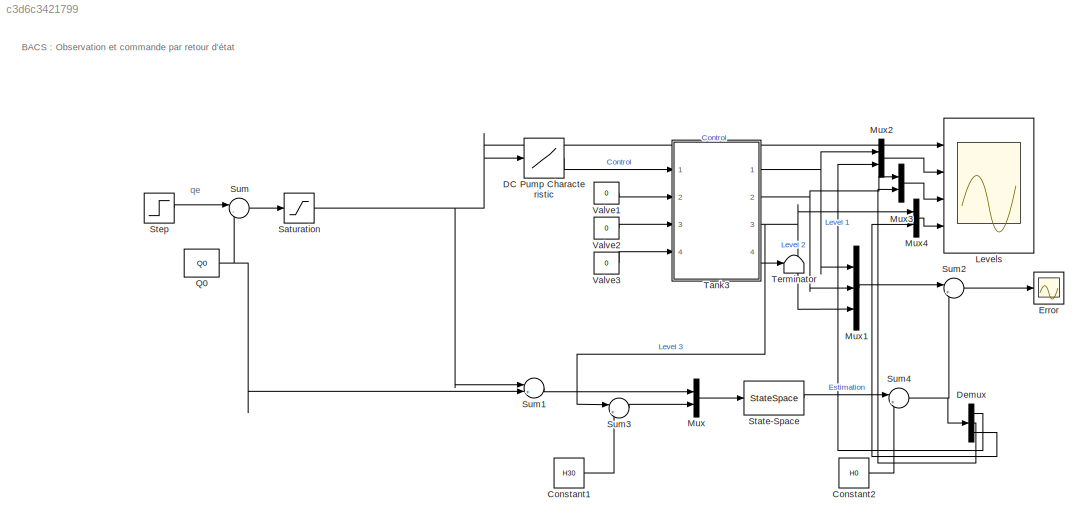
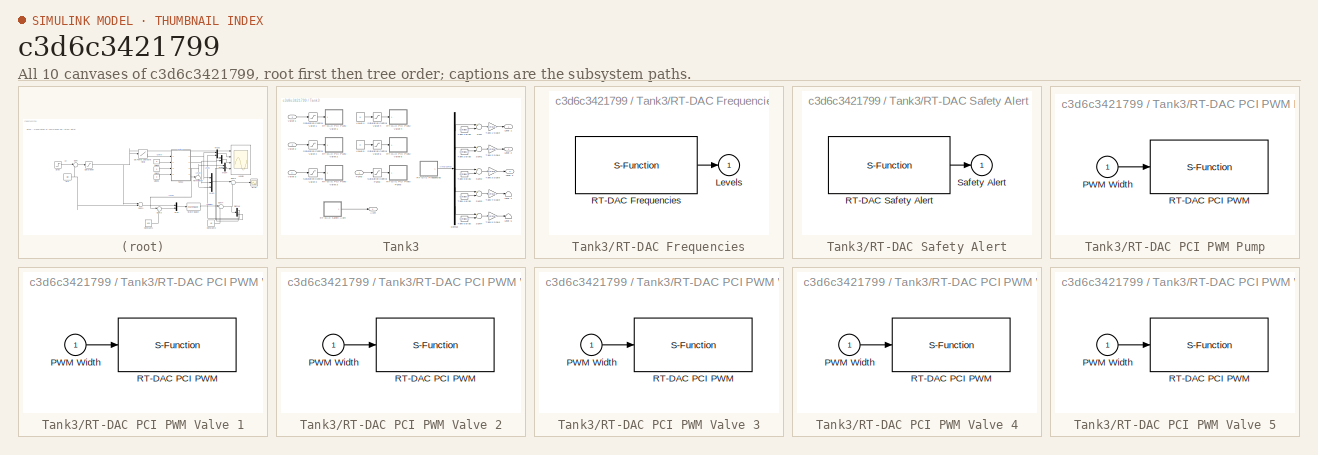
[diagram: thumbnail index - all 10 canvases of the model, root first then tree order]
MODEL slx_c3d6c3421799
KIND model
CONFIG AbsTol = 1e-6
CONFIG EnableMultiTasking = off
CONFIG FixedStep = 0.01
CONFIG MaxStep = auto
CONFIG MinStep = auto
CONFIG RelTol = 1e-3
CONFIG SampleTimeConstraint = Unconstrained
CONFIG Solver = ode5
CONFIG SolverName = ode5
CONFIG StartTime = 0.0
CONFIG StopTime = 9999
BLOCK [Constant] Constant1
  Value = H30
BLOCK [Constant] Constant2
  Value = H0
BLOCK [Lookup] DC Pump Characteristic
  InputValues = GetPumpChar('Volume')
  Table = GetPumpChar('control')
BLOCK [Demux] Demux
  DisplayOption = bar
  Outputs = 3
  Ports = [1, 3]
BLOCK [Scope] Error
  Floating = off
  NumInputPorts = 1
  Ports = [1]
  ScopeSpecificationString = Simulink.scopes.TimeScopeBlockCfg('CurrentConfiguration', extmgr.ConfigurationSet(extmgr.Configuration('Core','General UI',true),extmgr.Configuration('Core','Source UI',true),extmgr.Configuration('Sources','WiredSimulink',true,'DataLoggingVariableName','Error_real','DataLogging',true,'DataLoggingSaveFormat','StructureWithTime'),extmgr.Configuration('Visuals','Time Domain',true,'SerializedDisplays'...<+1446ch>
BLOCK [Scope] Levels
  ExtModeLoggingTrig = on
  Floating = off
  NumInputPorts = 4
  Ports = [4]
  ScopeSpecificationString = Simulink.scopes.TimeScopeBlockCfg('CurrentConfiguration', extmgr.ConfigurationSet(extmgr.Configuration('Core','General UI',true,'FigureColor',[1 1 1]),extmgr.Configuration('Core','Source UI',true),extmgr.Configuration('Sources','WiredSimulink',true,'DataLogging',true,'DataLoggingVariableName','Levels_real','DataLoggingSaveFormat','StructureWithTime','DataLoggingMaxPoints','100000','DataLoggingDeci...<+4288ch>
BLOCK [Mux] Mux
  DisplayOption = bar
  Inputs = 2
  Ports = [2, 1]
BLOCK [Mux] Mux1
  DisplayOption = bar
  Inputs = 3
  Ports = [3, 1]
BLOCK [Mux] Mux2
  DisplayOption = bar
  Inputs = 2
  Ports = [2, 1]
BLOCK [Mux] Mux3
  DisplayOption = bar
  Inputs = 2
  Ports = [2, 1]
BLOCK [Mux] Mux4
  DisplayOption = bar
  Inputs = 2
  Ports = [2, 1]
BLOCK [Constant] Q0
  Value = Q0
BLOCK [Saturate] Saturation
  InputPortMap = u0
  LowerLimit = 0
  Ports = [1, 1]
  UpperLimit = GetPumpChar('MaxVolume')
BLOCK [StateSpace] State-Space
  A = A-L1*C
  B = [B L1]
  C = eye(3)
  D = zeros(3,2)
  InitialCondition = 0
  Ports = [1, 1]
BLOCK [Step] Step
  After = 0.1*Q0
  SampleTime = 0
  Time = 300
BLOCK [Sum] Sum
  IconShape = round
  InputSameDT = off
  Inputs = |-+
  OutDataTypeStr = Inherit: Inherit via internal rule
  Ports = [2, 1]
  SaturateOnIntegerOverflow = off
BLOCK [Sum] Sum1
  IconShape = round
  InputSameDT = off
  Inputs = |+-
  OutDataTypeStr = Inherit: Inherit via internal rule
  Ports = [2, 1]
  SaturateOnIntegerOverflow = off
BLOCK [Sum] Sum2
  IconShape = round
  InputSameDT = off
  Inputs = |+-
  OutDataTypeStr = Inherit: Inherit via internal rule
  Ports = [2, 1]
  SaturateOnIntegerOverflow = off
BLOCK [Sum] Sum3
  IconShape = round
  InputSameDT = off
  Inputs = |+-
  OutDataTypeStr = Inherit: Inherit via internal rule
  Ports = [2, 1]
  SaturateOnIntegerOverflow = off
BLOCK [Sum] Sum4
  IconShape = round
  InputSameDT = off
  Inputs = |++
  OutDataTypeStr = Inherit: Inherit via internal rule
  Ports = [2, 1]
  SaturateOnIntegerOverflow = off
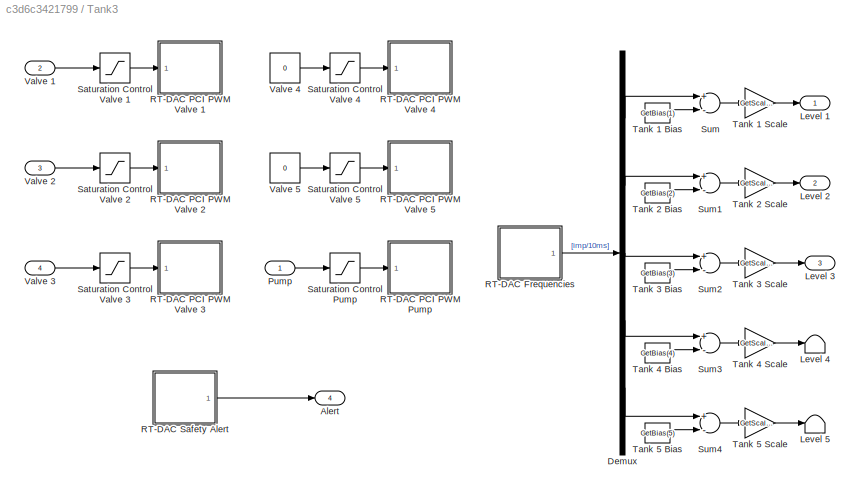
BLOCK [SubSystem] Tank3
  Ports = [4, 4]
  RequestExecContextInheritance = off
BLOCK [Outport] Tank3/Alert
  IconDisplay = Port number
  Port = 4
BLOCK [Demux] Tank3/Demux
  DisplayOption = bar
  Outputs = 5
  Ports = [1, 5]
BLOCK [Outport] Tank3/Level 1
  IconDisplay = Port number
BLOCK [Outport] Tank3/Level 2
  IconDisplay = Port number
  Port = 2
BLOCK [Outport] Tank3/Level 3
  IconDisplay = Port number
  Port = 3
BLOCK [Terminator] Tank3/Level 4
BLOCK [Terminator] Tank3/Level 5
BLOCK [Inport] Tank3/Pump
  IconDisplay = Port number
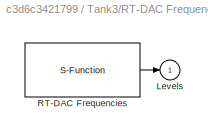
BLOCK [SubSystem] Tank3/RT-DAC Frequencies
  Ports = [0, 1]
  RequestExecContextInheritance = off
BLOCK [Outport] Tank3/RT-DAC Frequencies/Levels
  IconDisplay = Port number
BLOCK [S-Function] Tank3/RT-DAC Frequencies/RT-DAC Frequencies
  EnableBusSupport = off
  FunctionName = tank_frequencies
  Parameters = BaseAddress, T0
  Ports = [0, 1]
  SFcnIsStateOwnerBlock = off
  SFunctionDeploymentMode = off
BLOCK [SubSystem] Tank3/RT-DAC PCI PWM Pump
  Ports = [1]
  RequestExecContextInheritance = off
BLOCK [Inport] Tank3/RT-DAC PCI PWM Pump/PWM Width
  IconDisplay = Port number
BLOCK [S-Function] Tank3/RT-DAC PCI PWM Pump/RT-DAC PCI PWM 
  EnableBusSupport = off
  FunctionName = tank_pwm
  Parameters = BaseAddress, ChanIdx, ChanMode, ChanPresc, SetOutputsFlag, SetOutputsValue, T0
  Ports = [1]
  SFcnIsStateOwnerBlock = off
  SFunctionDeploymentMode = off
BLOCK [SubSystem] Tank3/RT-DAC PCI PWM Valve 1
  Ports = [1]
  RequestExecContextInheritance = off
BLOCK [Inport] Tank3/RT-DAC PCI PWM Valve 1/PWM Width
  IconDisplay = Port number
BLOCK [S-Function] Tank3/RT-DAC PCI PWM Valve 1/RT-DAC PCI PWM 
  EnableBusSupport = off
  FunctionName = tank_pwm
  Parameters = BaseAddress, ChanIdx, ChanMode, ChanPresc, SetOutputsFlag, SetOutputsValue, T0
  Ports = [1]
  SFcnIsStateOwnerBlock = off
  SFunctionDeploymentMode = off
BLOCK [SubSystem] Tank3/RT-DAC PCI PWM Valve 2
  Ports = [1]
  RequestExecContextInheritance = off
BLOCK [Inport] Tank3/RT-DAC PCI PWM Valve 2/PWM Width
  IconDisplay = Port number
BLOCK [S-Function] Tank3/RT-DAC PCI PWM Valve 2/RT-DAC PCI PWM 
  EnableBusSupport = off
  FunctionName = tank_pwm
  Parameters = BaseAddress, ChanIdx, ChanMode, ChanPresc, SetOutputsFlag, SetOutputsValue, T0
  Ports = [1]
  SFcnIsStateOwnerBlock = off
  SFunctionDeploymentMode = off
BLOCK [SubSystem] Tank3/RT-DAC PCI PWM Valve 3
  Ports = [1]
  RequestExecContextInheritance = off
BLOCK [Inport] Tank3/RT-DAC PCI PWM Valve 3/PWM Width
  IconDisplay = Port number
BLOCK [S-Function] Tank3/RT-DAC PCI PWM Valve 3/RT-DAC PCI PWM 
  EnableBusSupport = off
  FunctionName = tank_pwm
  Parameters = BaseAddress, ChanIdx, ChanMode, ChanPresc, SetOutputsFlag, SetOutputsValue, T0
  Ports = [1]
  SFcnIsStateOwnerBlock = off
  SFunctionDeploymentMode = off
BLOCK [SubSystem] Tank3/RT-DAC PCI PWM Valve 4
  Ports = [1]
  RequestExecContextInheritance = off
BLOCK [Inport] Tank3/RT-DAC PCI PWM Valve 4/PWM Width
  IconDisplay = Port number
BLOCK [S-Function] Tank3/RT-DAC PCI PWM Valve 4/RT-DAC PCI PWM 
  EnableBusSupport = off
  FunctionName = tank_pwm
  Parameters = BaseAddress, ChanIdx, ChanMode, ChanPresc, SetOutputsFlag, SetOutputsValue, T0
  Ports = [1]
  SFcnIsStateOwnerBlock = off
  SFunctionDeploymentMode = off
BLOCK [SubSystem] Tank3/RT-DAC PCI PWM Valve 5
  Ports = [1]
  RequestExecContextInheritance = off
BLOCK [Inport] Tank3/RT-DAC PCI PWM Valve 5/PWM Width
  IconDisplay = Port number
BLOCK [S-Function] Tank3/RT-DAC PCI PWM Valve 5/RT-DAC PCI PWM 
  EnableBusSupport = off
  FunctionName = tank_pwm
  Parameters = BaseAddress, ChanIdx, ChanMode, ChanPresc, SetOutputsFlag, SetOutputsValue, T0
  Ports = [1]
  SFcnIsStateOwnerBlock = off
  SFunctionDeploymentMode = off
BLOCK [SubSystem] Tank3/RT-DAC Safety Alert
  Ports = [0, 1]
  RequestExecContextInheritance = off
BLOCK [S-Function] Tank3/RT-DAC Safety Alert/RT-DAC Safety Alert
  EnableBusSupport = off
  FunctionName = tank_safetyalert
  Parameters = BaseAddress, T0
  Ports = [0, 1]
  SFcnIsStateOwnerBlock = off
  SFunctionDeploymentMode = off
BLOCK [Outport] Tank3/RT-DAC Safety Alert/Safety Alert
  IconDisplay = Port number
BLOCK [Saturate] Tank3/Saturation Control Pump
  InputPortMap = u0
  LowerLimit = 0
  Ports = [1, 1]
  UpperLimit = 1
BLOCK [Saturate] Tank3/Saturation Control Valve 1
  InputPortMap = u0
  LowerLimit = 0
  Ports = [1, 1]
  UpperLimit = 1
BLOCK [Saturate] Tank3/Saturation Control Valve 2
  InputPortMap = u0
  LowerLimit = 0
  Ports = [1, 1]
  UpperLimit = 1
BLOCK [Saturate] Tank3/Saturation Control Valve 3
  InputPortMap = u0
  LowerLimit = 0
  Ports = [1, 1]
  UpperLimit = 1
BLOCK [Saturate] Tank3/Saturation Control Valve 4
  InputPortMap = u0
  LowerLimit = 0
  Ports = [1, 1]
  UpperLimit = 1
BLOCK [Saturate] Tank3/Saturation Control Valve 5
  InputPortMap = u0
  LowerLimit = 0
  Ports = [1, 1]
  UpperLimit = 1
BLOCK [Sum] Tank3/Sum
  Inputs = +-
  Ports = [2, 1]
BLOCK [Sum] Tank3/Sum1
  Inputs = +-
  Ports = [2, 1]
BLOCK [Sum] Tank3/Sum2
  Inputs = +-
  Ports = [2, 1]
BLOCK [Sum] Tank3/Sum3
  Inputs = +-
  Ports = [2, 1]
BLOCK [Sum] Tank3/Sum4
  Inputs = +-
  Ports = [2, 1]
BLOCK [Constant] Tank3/Tank 1 Bias
  Value = GetBias(1)
BLOCK [Gain] Tank3/Tank 1 Scale
  Gain = GetScaleCoeff(1)
BLOCK [Constant] Tank3/Tank 2 Bias
  Value = GetBias(2)
BLOCK [Gain] Tank3/Tank 2 Scale
  Gain = GetScaleCoeff(2)
BLOCK [Constant] Tank3/Tank 3 Bias
  Value = GetBias(3)
BLOCK [Gain] Tank3/Tank 3 Scale
  Gain = GetScaleCoeff(3)
BLOCK [Constant] Tank3/Tank 4 Bias
  Value = GetBias(4)
BLOCK [Gain] Tank3/Tank 4 Scale
  Gain = GetScaleCoeff(4)
BLOCK [Constant] Tank3/Tank 5 Bias
  Value = GetBias(5)
BLOCK [Gain] Tank3/Tank 5 Scale
  Gain = GetScaleCoeff(5)
BLOCK [Inport] Tank3/Valve 1
  IconDisplay = Port number
  Port = 2
BLOCK [Inport] Tank3/Valve 2
  IconDisplay = Port number
  Port = 3
BLOCK [Inport] Tank3/Valve 3
  IconDisplay = Port number
  Port = 4
BLOCK [Constant] Tank3/Valve 4
  Value = 0
BLOCK [Constant] Tank3/Valve 5
  Value = 0
BLOCK [Terminator] Terminator
BLOCK [Constant] Valve1
  Value = 0
BLOCK [Constant] Valve2
  Value = 0
BLOCK [Constant] Valve3
  Value = 0
ANNOTATION (root): BACS : Observation et commande par retour d'état
ANNOTATION (root): qe
LINE Constant1:1 -> Sum3:2
LINE Constant2:1 -> Sum4:2
LINE DC Pump Characteristic:1 -> Tank3:1
LINE Demux:1 -> Mux2:2
LINE Demux:2 -> Mux3:2
LINE Demux:3 -> Mux4:2
LINE Mux1:1 -> Sum2:1
LINE Mux2:1 -> Levels:2
LINE Mux3:1 -> Levels:3
LINE Mux4:1 -> Levels:4
LINE Mux:1 -> State-Space:1
NET Q0:1 -> Sum1:2, Sum:2
NET Saturation:1 -> DC Pump Characteristic:1, Levels:1, Sum1:1
LINE State-Space:1 -> Sum4:1
LINE Step:1 -> Sum:1
LINE Sum1:1 -> Mux:1
LINE Sum2:1 -> Error:1
LINE Sum3:1 -> Mux:2
NET Sum4:1 -> Demux:1, Sum2:2
LINE Sum:1 -> Saturation:1
LINE Tank3/Demux:1 -> Tank3/Sum:1
LINE Tank3/Demux:2 -> Tank3/Sum1:1
LINE Tank3/Demux:3 -> Tank3/Sum2:1
LINE Tank3/Demux:4 -> Tank3/Sum3:1
LINE Tank3/Demux:5 -> Tank3/Sum4:1
LINE Tank3/Pump:1 -> Tank3/Saturation Control Pump:1
LINE Tank3/RT-DAC Frequencies/RT-DAC Frequencies:1 -> Tank3/RT-DAC Frequencies/Levels:1
LINE Tank3/RT-DAC Frequencies:1 -> Tank3/Demux:1
LINE Tank3/RT-DAC PCI PWM Pump/PWM Width:1 -> Tank3/RT-DAC PCI PWM Pump/RT-DAC PCI PWM :1
LINE Tank3/RT-DAC PCI PWM Valve 1/PWM Width:1 -> Tank3/RT-DAC PCI PWM Valve 1/RT-DAC PCI PWM :1
LINE Tank3/RT-DAC PCI PWM Valve 2/PWM Width:1 -> Tank3/RT-DAC PCI PWM Valve 2/RT-DAC PCI PWM :1
LINE Tank3/RT-DAC PCI PWM Valve 3/PWM Width:1 -> Tank3/RT-DAC PCI PWM Valve 3/RT-DAC PCI PWM :1
LINE Tank3/RT-DAC PCI PWM Valve 4/PWM Width:1 -> Tank3/RT-DAC PCI PWM Valve 4/RT-DAC PCI PWM :1
LINE Tank3/RT-DAC PCI PWM Valve 5/PWM Width:1 -> Tank3/RT-DAC PCI PWM Valve 5/RT-DAC PCI PWM :1
LINE Tank3/RT-DAC Safety Alert/RT-DAC Safety Alert:1 -> Tank3/RT-DAC Safety Alert/Safety Alert:1
LINE Tank3/RT-DAC Safety Alert:1 -> Tank3/Alert:1
LINE Tank3/Saturation Control Pump:1 -> Tank3/RT-DAC PCI PWM Pump:1
LINE Tank3/Saturation Control Valve 1:1 -> Tank3/RT-DAC PCI PWM Valve 1:1
LINE Tank3/Saturation Control Valve 2:1 -> Tank3/RT-DAC PCI PWM Valve 2:1
LINE Tank3/Saturation Control Valve 3:1 -> Tank3/RT-DAC PCI PWM Valve 3:1
LINE Tank3/Saturation Control Valve 4:1 -> Tank3/RT-DAC PCI PWM Valve 4:1
LINE Tank3/Saturation Control Valve 5:1 -> Tank3/RT-DAC PCI PWM Valve 5:1
LINE Tank3/Sum1:1 -> Tank3/Tank 2 Scale:1
LINE Tank3/Sum2:1 -> Tank3/Tank 3 Scale:1
LINE Tank3/Sum3:1 -> Tank3/Tank 4 Scale:1
LINE Tank3/Sum4:1 -> Tank3/Tank 5 Scale:1
LINE Tank3/Sum:1 -> Tank3/Tank 1 Scale:1
LINE Tank3/Tank 1 Bias:1 -> Tank3/Sum:2
LINE Tank3/Tank 1 Scale:1 -> Tank3/Level 1:1
LINE Tank3/Tank 2 Bias:1 -> Tank3/Sum1:2
LINE Tank3/Tank 2 Scale:1 -> Tank3/Level 2:1
LINE Tank3/Tank 3 Bias:1 -> Tank3/Sum2:2
LINE Tank3/Tank 3 Scale:1 -> Tank3/Level 3:1
LINE Tank3/Tank 4 Bias:1 -> Tank3/Sum3:2
LINE Tank3/Tank 4 Scale:1 -> Tank3/Level 4:1
LINE Tank3/Tank 5 Bias:1 -> Tank3/Sum4:2
LINE Tank3/Tank 5 Scale:1 -> Tank3/Level 5:1
LINE Tank3/Valve 1:1 -> Tank3/Saturation Control Valve 1:1
LINE Tank3/Valve 2:1 -> Tank3/Saturation Control Valve 2:1
LINE Tank3/Valve 3:1 -> Tank3/Saturation Control Valve 3:1
LINE Tank3/Valve 4:1 -> Tank3/Saturation Control Valve 4:1
LINE Tank3/Valve 5:1 -> Tank3/Saturation Control Valve 5:1
NET Tank3:1 -> Mux1:1, Mux2:1
NET Tank3:2 -> Mux1:2, Mux3:1
NET Tank3:3 -> Mux1:3, Mux4:1, Sum3:1
LINE Tank3:4 -> Terminator:1
LINE Valve1:1 -> Tank3:2
LINE Valve2:1 -> Tank3:3
LINE Valve3:1 -> Tank3:4
note: NET lines group one-source signal fan-out (src -> all destinations, sorted); 1:1 wires keep LINE
